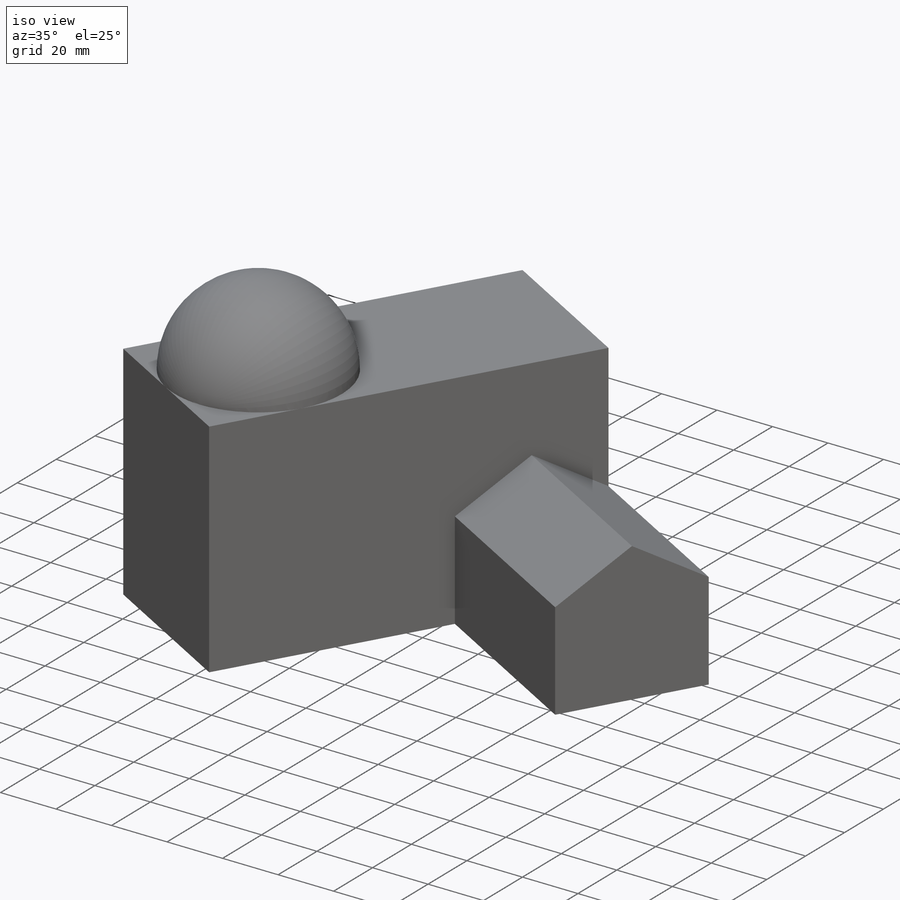
[diagram: iso view]
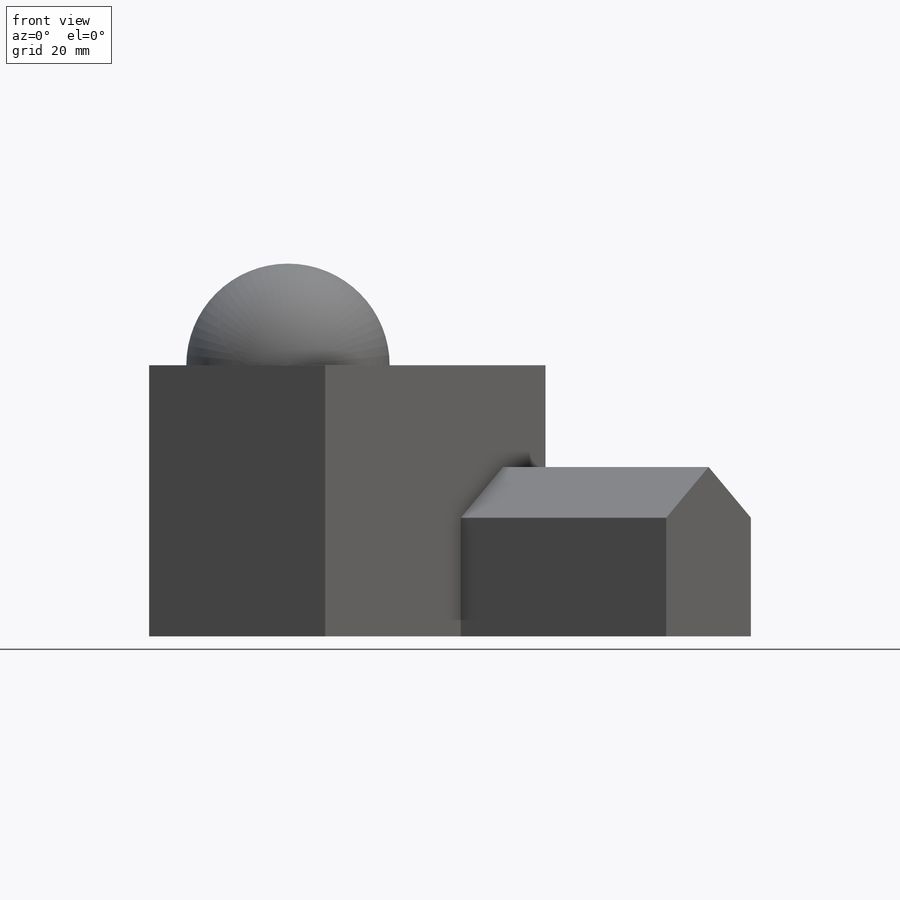
[diagram: front view]
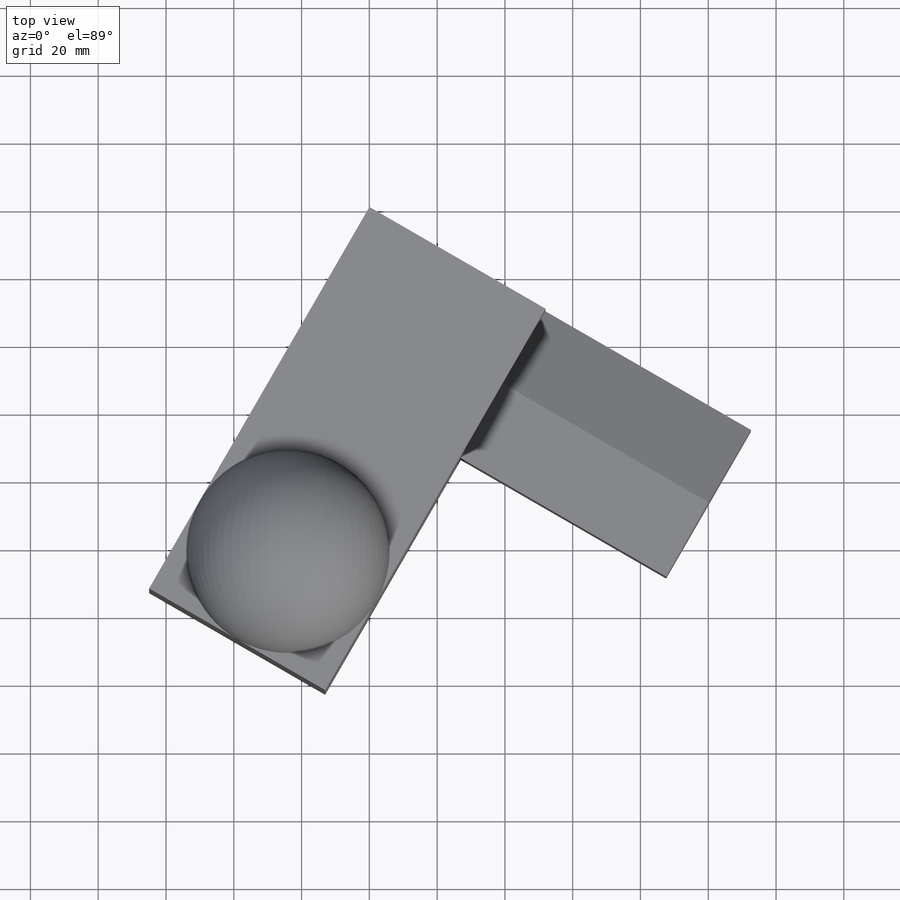
[diagram: top view]
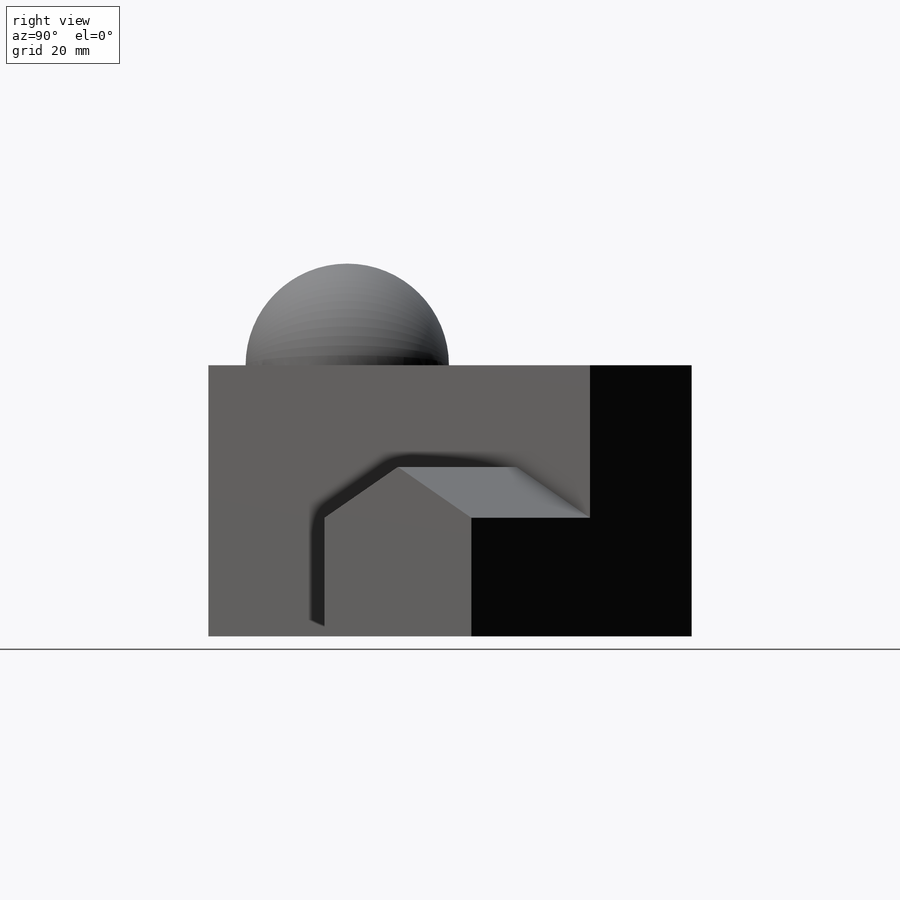
[diagram: right view]
SOLIDWORKS PART (.sldprt)
format: sldprt  version: not decoded by parser v0  size: 305,152 bytes
history: native  units: mm
features: sketch x4, extrude x3, material x1, revolve x1 (+14 scaffold rows collapsed)
feature tree (23):
  scaffold x14  (default folders/planes/origin — collapsed)
  material  "Material <not specified>"
  sketch  "Sketch1"  dims[c1.D1=~36.655134mm c2.D1=60.0deg c2.D2=130.0mm c2.D3=60.0mm]
  extrude  "Main Building"  Depth=80mm
  sketch  "Sketch2"
  revolve  "Dome"  Angle=360deg
  sketch  "Sketch3"  dims[D1=70.0mm D2=50.0mm]
  extrude  "Small Building"  Depth=35mm
  sketch  "Sketch4"  dims[D1=15.0mm]
  extrude  "Small Building Roof"  Depth=70mm
decode coverage: 7 of 8 modeling features carry decoded parameters
note: ~ marks probable driven/reference dimensions
note: suppression state not decoded; provenance and decode notes live in map.json
